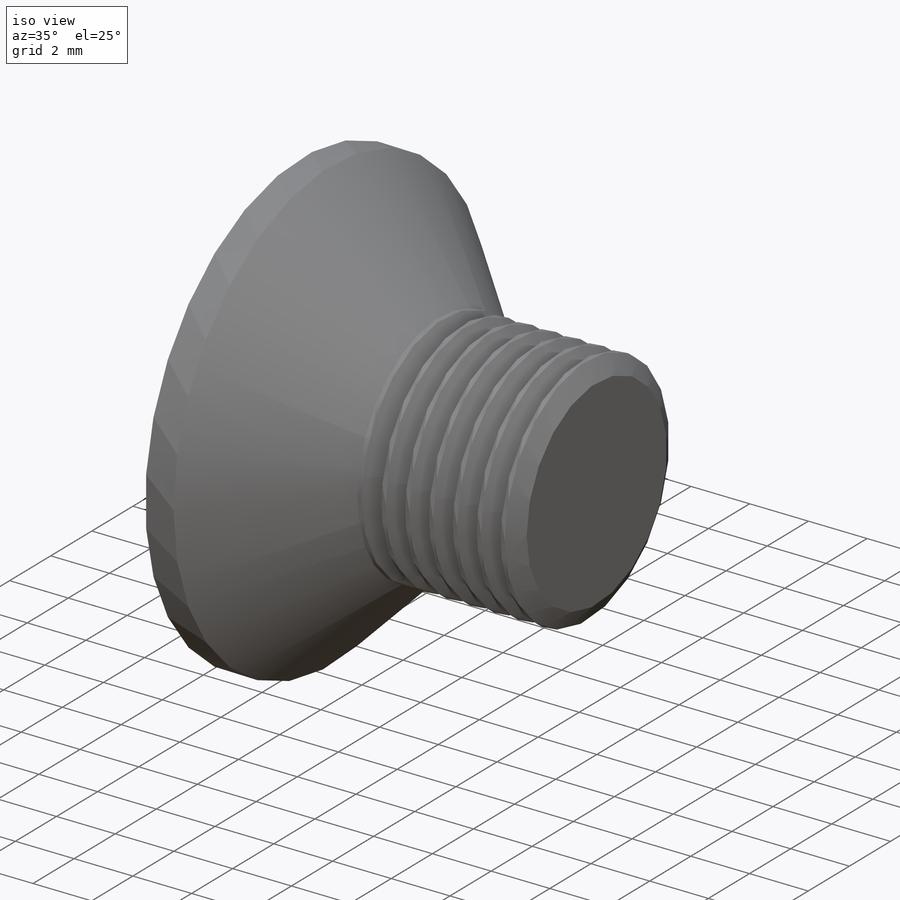
[diagram: iso view]
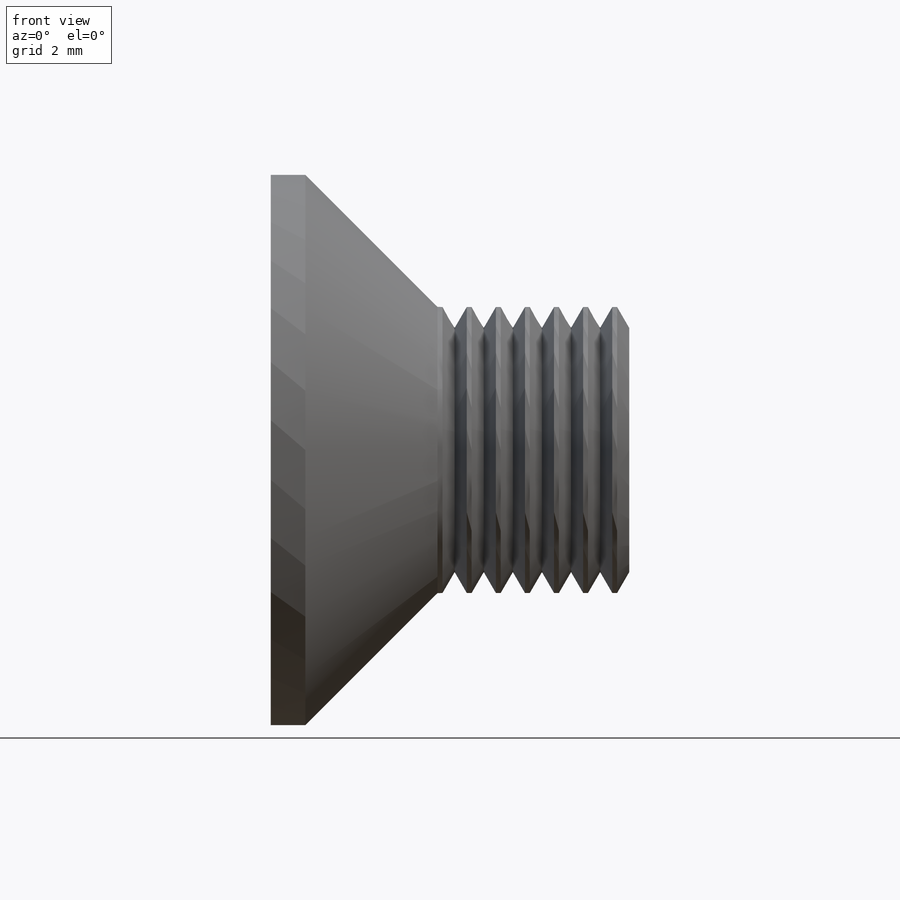
[diagram: front view]
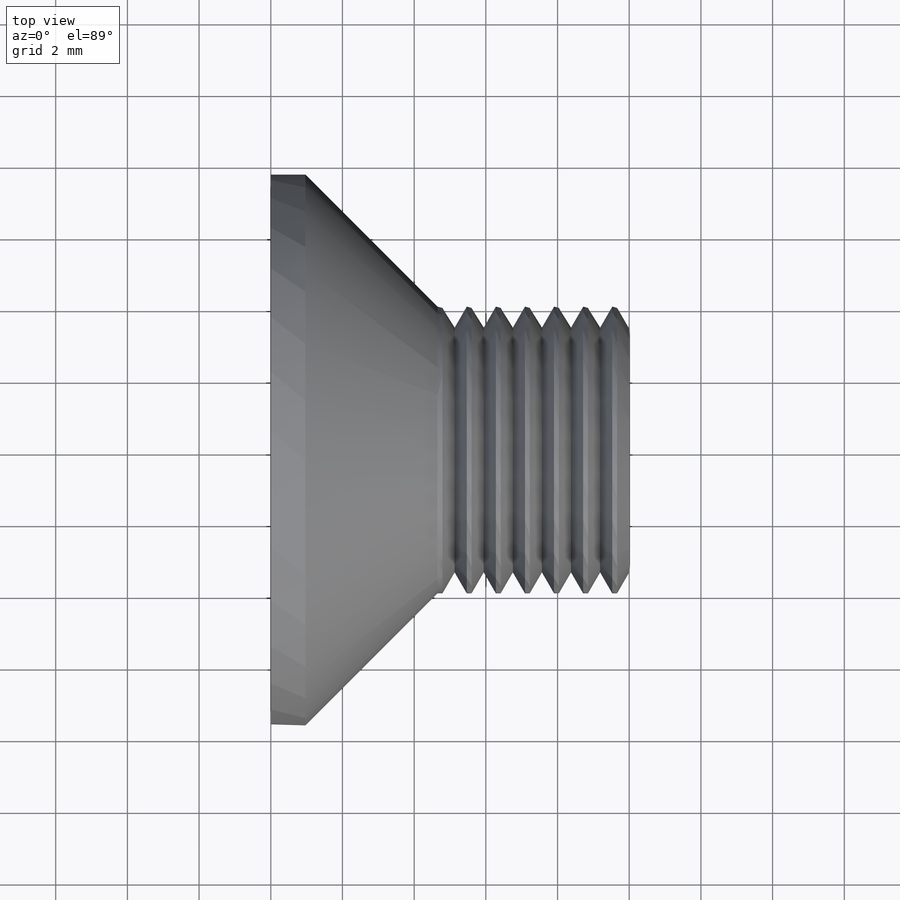
[diagram: top view]
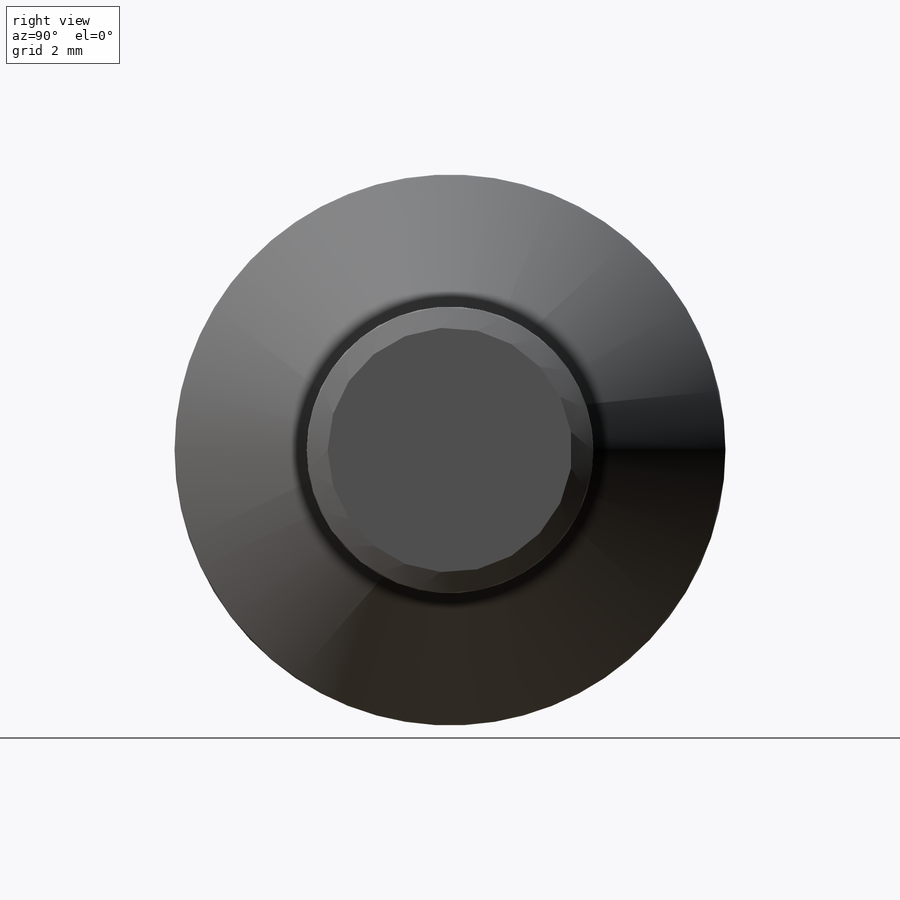
[diagram: right view]
SOLIDWORKS PART (.sldprt)
format: sldprt  version: not decoded by parser v0  size: 309,248 bytes
history: native  units: mm
features: sketch x5, cut_extrude x2, material x1, revolve x1, thread x1, fillet x1, cut_revolve x1, pattern_linear x1 (+15 scaffold rows collapsed; 1 parser-record rows omitted)
feature tree (29):
  parser-record x1  (decoder bookkeeping rows leaked as tree rows — omitted from the tree; the rows remain in map.json)
  scaffold x15  (default folders/planes/origin — collapsed)
  material  "材质 <未指定>"
  sketch  "Sketch1"  dims[c1.D1=0.3mm c1.rf=16.0mm c1.d=8.0mm c1.dk=20.0mm c1.D4=1.3mm c1.l=60.0mm c1.k=7.5mm c1.a=3.0mm c1.da=11.2mm c2.D1=~4.594322mm c3.D1=45.0deg c3.dk=15.37mm c3.k=4.65mm c3.l=10.0mm c3.a=2.5mm c3.D6=0.2mm c3.D2=8.376mm]
  revolve  "Base"  [1 undecoded]
  thread  "ThreadCosmetic1"  Diameter=5.35mm bb=5.35mm THD_MINOR=6.647mm  [1 undecoded]
  sketch  "Sketch6"  dims[D1=1.78mm m=8.9mm D3=~0.56245mm D4=~1.453083mm]
  cut_extrude  "CrossRecess"  Depth=2.325mm
  fillet  "Fillet5"  Radius=0.3mm r=0.3mm
  sketch  "Sketch7"  dims[c1.D1=~2.019432mm c2.D1=45.0deg c2.D2=~1.796539mm c2.D3=~0.619807mm c3.D3=15.0deg]
  cut_extrude  "Cut-Extrude3"  Depth=10mm
  sketch  "Sketch8"  dims[c1.D1=~0.628473mm c2.D1=45.0deg c2.x=3.2mm c2.D2=38.0mm c3.D1=5.0mm c3.b=38.0mm]
  sketch  "Sketch9"  dims[D1=8.0mm D2=0.6765mm]
  cut_revolve  "Cut-Revolve10"  Angle=360deg
  pattern_linear  "LPattern10"  Count1=7 Count2=1 Spacing1=0.8118mm Spacing2=50mm ConfigurationName=0mm CopiedFlag=1 PartNumberID=0mm
decode coverage: 11 of 12 modeling features carry decoded parameters
note: ~ marks probable driven/reference dimensions
note: 2 parameter values undecoded
note: suppression state not decoded; provenance and decode notes live in map.json
